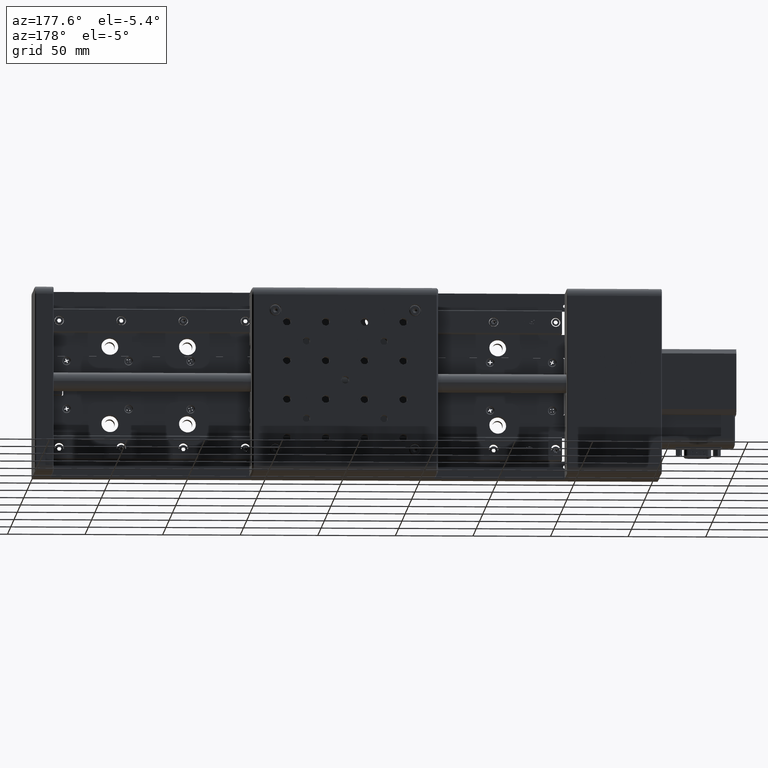
[diagram: clean part render]
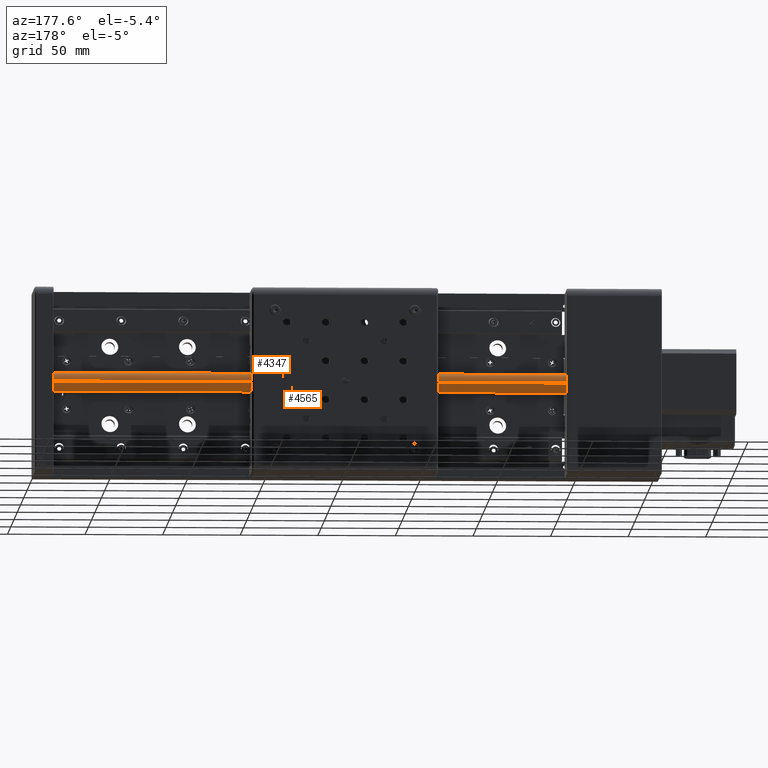
[diagram: same view with one multi-face feature highlighted, each face labeled with its STEP entity id]
A machine part, auxiliary view. The highlighted faces form ONE feature: a constant-radius fillet chain: 2 tangent blend faces with common blend radius 6 mm. The faces share edges in the B-rep.
Their STEP definitions:
[1] entity #4347 (Cylinder):
#1483 = DIRECTION ( 'NONE',  ( 0.0000000000000000000, -1.000000000000000000, 0.0000000000000000000 ) ) ;
#2159 = AXIS2_PLACEMENT_3D ( 'NONE', #24518, #4627, #1483 ) ;
#2402 = VECTOR ( 'NONE', #20561, 1000.000000000000000 ) ;
#3700 = CARTESIAN_POINT ( 'NONE',  ( 285.0905472185921800, 33.99999999999683100, -207.4944050297509600 ) ) ;
#3888 = CARTESIAN_POINT ( 'NONE',  ( 285.0905472185921800, 27.99999999999683100, -207.4944050297509600 ) ) ;
#4276 = VERTEX_POINT ( 'NONE', #34135 ) ;
#4347 = ADVANCED_FACE ( 'NONE', ( #40303 ), #24355, .T. ) ;
#4627 = DIRECTION ( 'NONE',  ( -1.000000000000000000, 8.711712482445187200E-017, -1.050090843693202800E-014 ) ) ;
#7633 = DIRECTION ( 'NONE',  ( -1.000000000000000000, 8.711712482445187200E-017, -1.050090843693202800E-014 ) ) ;
#10605 = EDGE_LOOP ( 'NONE', ( #14969, #30319, #18859, #30191 ) ) ;
#11865 = CARTESIAN_POINT ( 'NONE',  ( 285.0905472185921800, 39.99999999999683100, -207.4944050297527600 ) ) ;
#12154 = CARTESIAN_POINT ( 'NONE',  ( 285.0905472185921800, 27.99999999999683100, -207.4944050297527600 ) ) ;
#12986 = CARTESIAN_POINT ( 'NONE',  ( -51.90945278140776500, 39.99999999999685900, -207.4944050297527600 ) ) ;
#12997 = EDGE_CURVE ( 'NONE', #4276, #22222, #38164, .T. ) ;
#13751 = EDGE_CURVE ( 'NONE', #27019, #4276, #21622, .T. ) ;
#14443 = DIRECTION ( 'NONE',  ( 0.0000000000000000000, -1.000000000000000000, 0.0000000000000000000 ) ) ;
#14969 = ORIENTED_EDGE ( 'NONE', *, *, #22749, .F. ) ;
#17072 = VERTEX_POINT ( 'NONE', #11865 ) ;
#18859 = ORIENTED_EDGE ( 'NONE', *, *, #12997, .F. ) ;
#20561 = DIRECTION ( 'NONE',  ( -1.000000000000000000, 8.711712482445187200E-017, -1.050090843693202800E-014 ) ) ;
#21622 = LINE ( 'NONE', #3888, #36565 ) ;
#22147 = LINE ( 'NONE', #24474, #2402 ) ;
#22222 = VERTEX_POINT ( 'NONE', #12986 ) ;
#22749 = EDGE_CURVE ( 'NONE', #17072, #27019, #36860, .T. ) ;
#23457 = AXIS2_PLACEMENT_3D ( 'NONE', #3700, #23991, #30058 ) ;
#23991 = DIRECTION ( 'NONE',  ( 1.000000000000000000, -8.711712482445187200E-017, 1.050090843693202800E-014 ) ) ;
#24355 = CYLINDRICAL_SURFACE ( 'NONE', #30771, 6.000000000000001800 ) ;
#24474 = CARTESIAN_POINT ( 'NONE',  ( 285.0905472185921800, 39.99999999999683100, -207.4944050297509600 ) ) ;
#24518 = CARTESIAN_POINT ( 'NONE',  ( -51.90945278140776500, 33.99999999999685900, -207.4944050297544900 ) ) ;
#27019 = VERTEX_POINT ( 'NONE', #12154 ) ;
#27904 = CARTESIAN_POINT ( 'NONE',  ( 285.0905472185921800, 33.99999999999683100, -207.4944050297509600 ) ) ;
#30058 = DIRECTION ( 'NONE',  ( 0.0000000000000000000, 1.000000000000000000, 0.0000000000000000000 ) ) ;
#30114 = DIRECTION ( 'NONE',  ( -1.000000000000000000, 8.711712482445187200E-017, -1.050090843693202800E-014 ) ) ;
#30191 = ORIENTED_EDGE ( 'NONE', *, *, #13751, .F. ) ;
#30319 = ORIENTED_EDGE ( 'NONE', *, *, #37628, .T. ) ;
#30771 = AXIS2_PLACEMENT_3D ( 'NONE', #27904, #7633, #14443 ) ;
#34135 = CARTESIAN_POINT ( 'NONE',  ( -51.90945278140776500, 27.99999999999685600, -207.4944050297544900 ) ) ;
#36565 = VECTOR ( 'NONE', #30114, 1000.000000000000000 ) ;
#36860 = CIRCLE ( 'NONE', #23457, 5.999999999999998200 ) ;
#37628 = EDGE_CURVE ( 'NONE', #17072, #22222, #22147, .T. ) ;
#38164 = CIRCLE ( 'NONE', #2159, 6.000000000000001800 ) ;
#40303 = FACE_OUTER_BOUND ( 'NONE', #10605, .T. ) ;
[2] entity #4565 (Cylinder):
#1061 = AXIS2_PLACEMENT_3D ( 'NONE', #18377, #17975, #14758 ) ;
#1958 = ORIENTED_EDGE ( 'NONE', *, *, #18115, .F. ) ;
#2402 = VECTOR ( 'NONE', #20561, 1000.000000000000000 ) ;
#3888 = CARTESIAN_POINT ( 'NONE',  ( 285.0905472185921800, 27.99999999999683100, -207.4944050297509600 ) ) ;
#4276 = VERTEX_POINT ( 'NONE', #34135 ) ;
#4565 = ADVANCED_FACE ( 'NONE', ( #27394 ), #26377, .T. ) ;
#5224 = CARTESIAN_POINT ( 'NONE',  ( 285.0905472185921800, 33.99999999999683100, -207.4944050297509600 ) ) ;
#11865 = CARTESIAN_POINT ( 'NONE',  ( 285.0905472185921800, 39.99999999999683100, -207.4944050297527600 ) ) ;
#12154 = CARTESIAN_POINT ( 'NONE',  ( 285.0905472185921800, 27.99999999999683100, -207.4944050297527600 ) ) ;
#12210 = DIRECTION ( 'NONE',  ( 1.000000000000000000, -8.711712482445187200E-017, 1.050090843693202800E-014 ) ) ;
#12434 = CIRCLE ( 'NONE', #42692, 5.999999999999998200 ) ;
#12468 = DIRECTION ( 'NONE',  ( -1.000000000000000000, 8.711712482445187200E-017, -1.050090843693202800E-014 ) ) ;
#12986 = CARTESIAN_POINT ( 'NONE',  ( -51.90945278140776500, 39.99999999999685900, -207.4944050297527600 ) ) ;
#13031 = AXIS2_PLACEMENT_3D ( 'NONE', #35167, #12468, #38866 ) ;
#13751 = EDGE_CURVE ( 'NONE', #27019, #4276, #21622, .T. ) ;
#14758 = DIRECTION ( 'NONE',  ( 0.0000000000000000000, -1.000000000000000000, 0.0000000000000000000 ) ) ;
#15450 = ORIENTED_EDGE ( 'NONE', *, *, #13751, .T. ) ;
#15521 = DIRECTION ( 'NONE',  ( 0.0000000000000000000, 1.000000000000000000, 0.0000000000000000000 ) ) ;
#15876 = CIRCLE ( 'NONE', #1061, 6.000000000000001800 ) ;
#17072 = VERTEX_POINT ( 'NONE', #11865 ) ;
#17975 = DIRECTION ( 'NONE',  ( -1.000000000000000000, 8.711712482445187200E-017, -1.050090843693202800E-014 ) ) ;
#18115 = EDGE_CURVE ( 'NONE', #27019, #17072, #12434, .T. ) ;
#18377 = CARTESIAN_POINT ( 'NONE',  ( -51.90945278140776500, 33.99999999999685900, -207.4944050297544900 ) ) ;
#20561 = DIRECTION ( 'NONE',  ( -1.000000000000000000, 8.711712482445187200E-017, -1.050090843693202800E-014 ) ) ;
#21622 = LINE ( 'NONE', #3888, #36565 ) ;
#22147 = LINE ( 'NONE', #24474, #2402 ) ;
#22222 = VERTEX_POINT ( 'NONE', #12986 ) ;
#24474 = CARTESIAN_POINT ( 'NONE',  ( 285.0905472185921800, 39.99999999999683100, -207.4944050297509600 ) ) ;
#26377 = CYLINDRICAL_SURFACE ( 'NONE', #13031, 6.000000000000001800 ) ;
#27019 = VERTEX_POINT ( 'NONE', #12154 ) ;
#27394 = FACE_OUTER_BOUND ( 'NONE', #35396, .T. ) ;
#30114 = DIRECTION ( 'NONE',  ( -1.000000000000000000, 8.711712482445187200E-017, -1.050090843693202800E-014 ) ) ;
#32486 = ORIENTED_EDGE ( 'NONE', *, *, #37628, .F. ) ;
#34135 = CARTESIAN_POINT ( 'NONE',  ( -51.90945278140776500, 27.99999999999685600, -207.4944050297544900 ) ) ;
#35167 = CARTESIAN_POINT ( 'NONE',  ( 285.0905472185921800, 33.99999999999683100, -207.4944050297509600 ) ) ;
#35396 = EDGE_LOOP ( 'NONE', ( #32486, #1958, #15450, #38892 ) ) ;
#35440 = EDGE_CURVE ( 'NONE', #22222, #4276, #15876, .T. ) ;
#36565 = VECTOR ( 'NONE', #30114, 1000.000000000000000 ) ;
#37628 = EDGE_CURVE ( 'NONE', #17072, #22222, #22147, .T. ) ;
#38866 = DIRECTION ( 'NONE',  ( 0.0000000000000000000, -1.000000000000000000, 0.0000000000000000000 ) ) ;
#38892 = ORIENTED_EDGE ( 'NONE', *, *, #35440, .F. ) ;
#42692 = AXIS2_PLACEMENT_3D ( 'NONE', #5224, #12210, #15521 ) ;